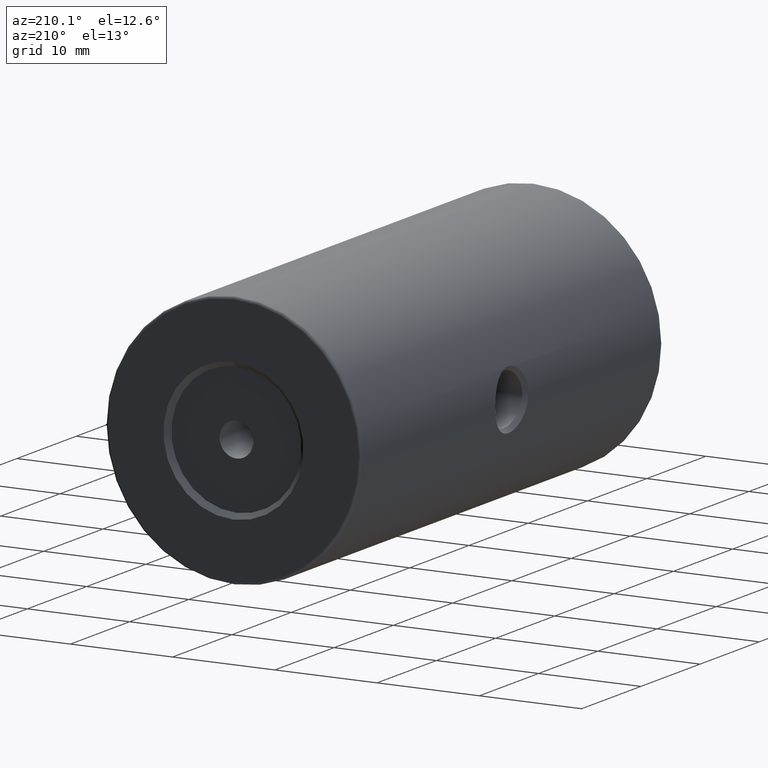
[diagram: clean part render]
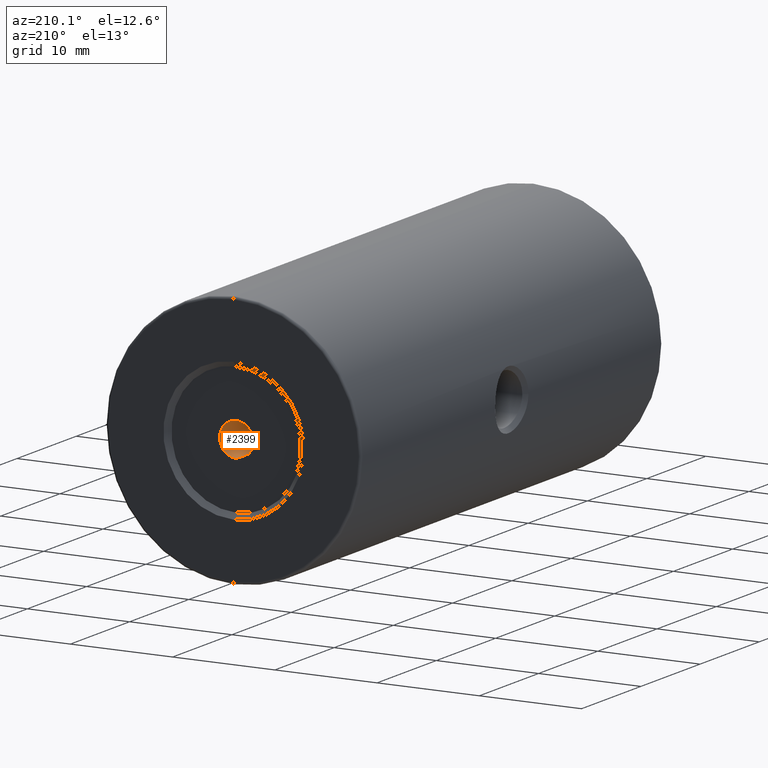
[diagram: same view with one face highlighted and labeled with its STEP entity id]
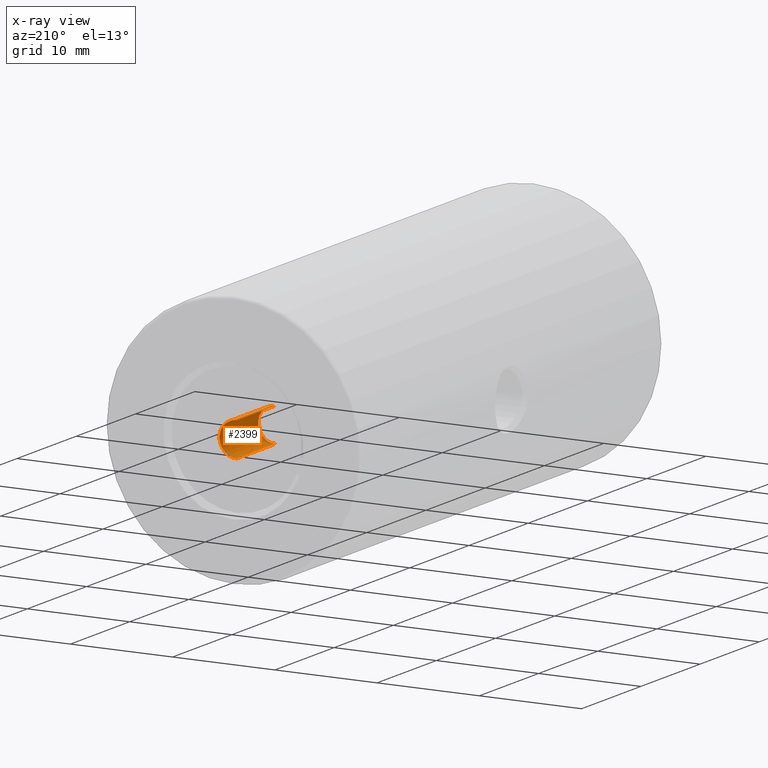
[diagram: x-ray of the same camera — body ghosted, the highlighted face saturated]
A machine part, auxiliary view. The second image highlights one B-rep face of the part: STEP entity #2399.
The next image is the same camera in x-ray: the body ghosted, the highlighted face saturated — about 5% of this face is hidden behind the body in this view.
In plain terms, the highlighted cylindrical surface (edge-blend (fillet) strip) has radius 1.65 mm, axis along (-0, 1, -0).
Its self-contained STEP definition (entity closure, byte-faithful):
#40 = VERTEX_POINT ( 'NONE', #1923 ) ;
#113 = DIRECTION ( 'NONE',  ( -0.0000000000000000000, 1.000000000000000000, -0.0000000000000000000 ) ) ;
#165 = CYLINDRICAL_SURFACE ( 'NONE', #1603, 1.649999999999998579 ) ;
#218 = ORIENTED_EDGE ( 'NONE', *, *, #2015, .F. ) ;
#430 = FACE_OUTER_BOUND ( 'NONE', #3236, .T. ) ;
#497 = VECTOR ( 'NONE', #1666, 1000.000000000000000 ) ;
#608 = LINE ( 'NONE', #2448, #497 ) ;
#810 = ORIENTED_EDGE ( 'NONE', *, *, #1530, .T. ) ;
#996 = CARTESIAN_POINT ( 'NONE',  ( -22.50520183104453409, 26.79825218476938886, 50.00000000000000000 ) ) ;
#1033 = EDGE_CURVE ( 'NONE', #40, #2304, #2155, .T. ) ;
#1096 = AXIS2_PLACEMENT_3D ( 'NONE', #3241, #113, #2701 ) ;
#1226 = DIRECTION ( 'NONE',  ( 0.0000000000000000000, 0.0000000000000000000, 1.000000000000000000 ) ) ;
#1254 = VERTEX_POINT ( 'NONE', #2185 ) ;
#1320 = AXIS2_PLACEMENT_3D ( 'NONE', #2217, #1541, #3408 ) ;
#1509 = DIRECTION ( 'NONE',  ( -0.0000000000000000000, 1.000000000000000000, -0.0000000000000000000 ) ) ;
#1530 = EDGE_CURVE ( 'NONE', #40, #1254, #608, .T. ) ;
#1541 = DIRECTION ( 'NONE',  ( 0.0000000000000000000, 1.000000000000000000, 0.0000000000000000000 ) ) ;
#1551 = VECTOR ( 'NONE', #3213, 1000.000000000000000 ) ;
#1603 = AXIS2_PLACEMENT_3D ( 'NONE', #996, #1509, #1226 ) ;
#1666 = DIRECTION ( 'NONE',  ( -0.0000000000000000000, 1.000000000000000000, -0.0000000000000000000 ) ) ;
#1923 = CARTESIAN_POINT ( 'NONE',  ( -22.50520183104453409, 19.79825218476938886, 51.64999999999999858 ) ) ;
#2015 = EDGE_CURVE ( 'NONE', #2304, #2410, #2458, .T. ) ;
#2076 = CARTESIAN_POINT ( 'NONE',  ( -22.50520183104453409, 19.79825218476938886, 48.35000000000000142 ) ) ;
#2155 = CIRCLE ( 'NONE', #1096, 1.649999999999998579 ) ;
#2185 = CARTESIAN_POINT ( 'NONE',  ( -22.50520183104453409, 26.29825218476938886, 51.64999999999999858 ) ) ;
#2209 = EDGE_CURVE ( 'NONE', #1254, #2410, #2947, .T. ) ;
#2217 = CARTESIAN_POINT ( 'NONE',  ( -22.50520183104453409, 26.29825218476938886, 50.00000000000000000 ) ) ;
#2290 = CARTESIAN_POINT ( 'NONE',  ( -22.50520183104453409, 26.29825218476938886, 48.35000000000000142 ) ) ;
#2304 = VERTEX_POINT ( 'NONE', #2076 ) ;
#2319 = ORIENTED_EDGE ( 'NONE', *, *, #2209, .T. ) ;
#2399 = ADVANCED_FACE ( 'NONE', ( #430 ), #165, .F. ) ;
#2410 = VERTEX_POINT ( 'NONE', #2290 ) ;
#2422 = CARTESIAN_POINT ( 'NONE',  ( -22.50520183104453409, 26.79825218476938886, 48.35000000000000142 ) ) ;
#2448 = CARTESIAN_POINT ( 'NONE',  ( -22.50520183104453409, 26.79825218476938886, 51.64999999999999858 ) ) ;
#2458 = LINE ( 'NONE', #2422, #1551 ) ;
#2701 = DIRECTION ( 'NONE',  ( 0.0000000000000000000, 0.0000000000000000000, 1.000000000000000000 ) ) ;
#2947 = CIRCLE ( 'NONE', #1320, 1.649999999999998579 ) ;
#3127 = ORIENTED_EDGE ( 'NONE', *, *, #1033, .F. ) ;
#3213 = DIRECTION ( 'NONE',  ( -0.0000000000000000000, 1.000000000000000000, -0.0000000000000000000 ) ) ;
#3236 = EDGE_LOOP ( 'NONE', ( #218, #3127, #810, #2319 ) ) ;
#3241 = CARTESIAN_POINT ( 'NONE',  ( -22.50520183104453409, 19.79825218476938886, 50.00000000000000000 ) ) ;
#3408 = DIRECTION ( 'NONE',  ( 0.0000000000000000000, 0.0000000000000000000, 1.000000000000000000 ) ) ;